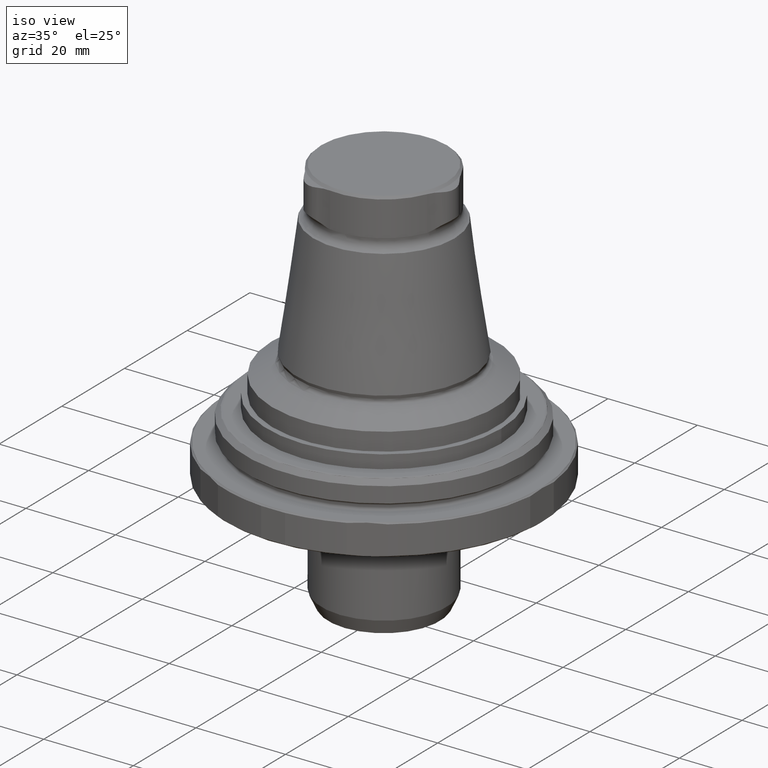
[diagram: clean part render]
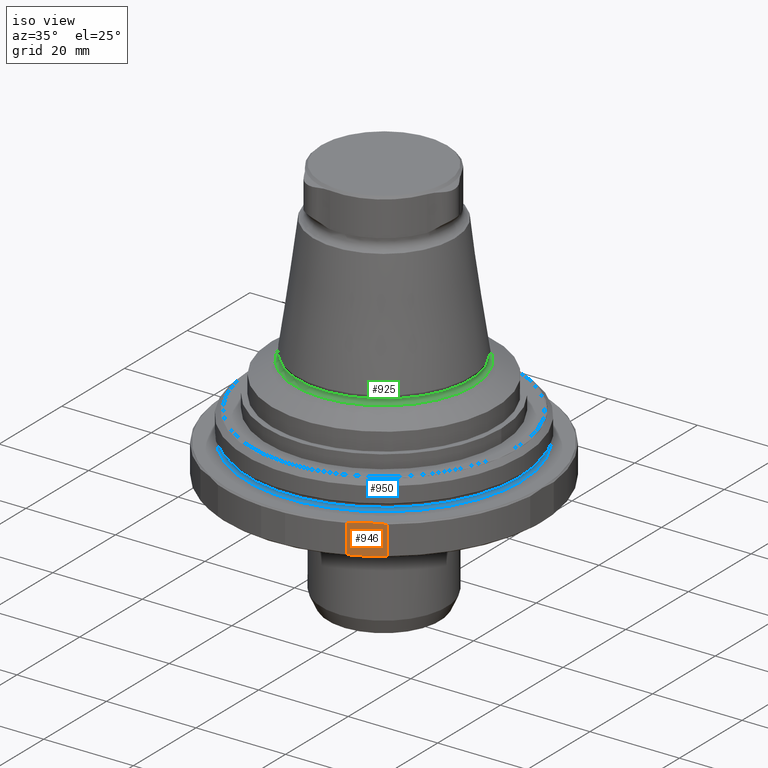
[diagram: same view with three faces highlighted in distinct colors, each labeled with its STEP entity id]
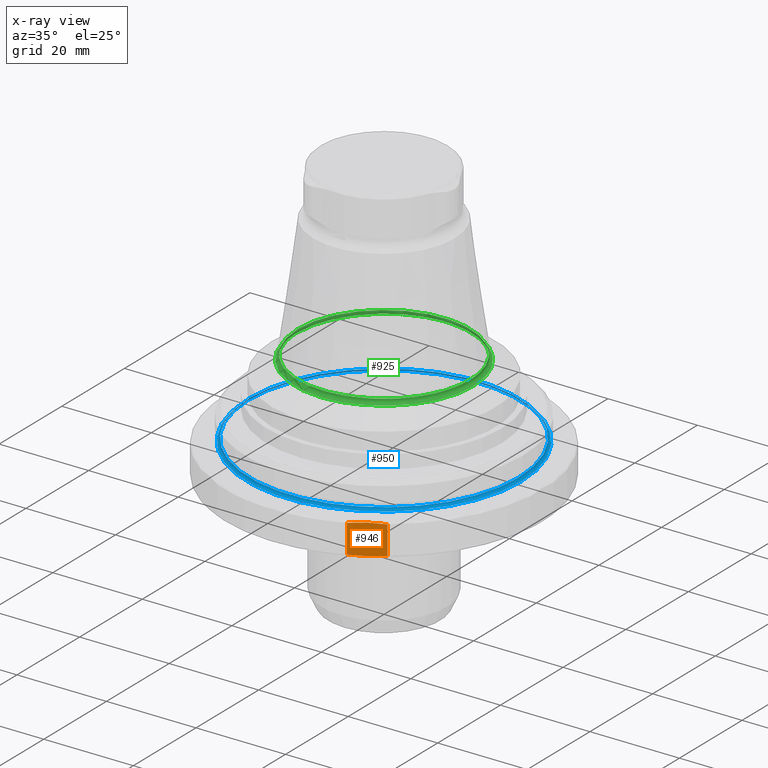
[diagram: x-ray of the same camera — body ghosted, the three highlighted faces saturated]
A machine part, iso view with three faces highlighted in distinct colors.
The next image is the same camera in x-ray (body ghosted, the three faces saturated) — at least one of them is partly hidden behind the body in this view.
Their STEP definitions:

[orange] entity #946 — the highlighted planar face has unit normal (-0.5, 0.866, 0).
#50=LINE('',#1779,#78);
#52=LINE('',#1783,#80);
#78=VECTOR('',#1306,1000.);
#80=VECTOR('',#1312,1000.);
#107=PLANE('',#1069);
#384=ORIENTED_EDGE('',*,*,#532,.F.);
#385=ORIENTED_EDGE('',*,*,#519,.F.);
#386=ORIENTED_EDGE('',*,*,#530,.F.);
#387=ORIENTED_EDGE('',*,*,#491,.F.);
#491=EDGE_CURVE('',#598,#599,#662,.T.);
#519=EDGE_CURVE('',#622,#623,#676,.T.);
#530=EDGE_CURVE('',#599,#622,#50,.T.);
#532=EDGE_CURVE('',#623,#598,#52,.F.);
#598=VERTEX_POINT('',#1657);
#599=VERTEX_POINT('',#1662);
#622=VERTEX_POINT('',#1753);
#623=VERTEX_POINT('',#1758);
#662=B_SPLINE_CURVE_WITH_KNOTS('',3,(#1658,#1659,#1660,#1661),
 .UNSPECIFIED.,.F.,.F.,(4,4),(0.00301971742095615,0.0105389064051034),
 .UNSPECIFIED.);
#676=B_SPLINE_CURVE_WITH_KNOTS('',3,(#1754,#1755,#1756,#1757),
 .UNSPECIFIED.,.F.,.F.,(4,4),(0.0142564267081391,0.0217467200872314),
 .UNSPECIFIED.);
#744=EDGE_LOOP('',(#384,#385,#386,#387));
#840=FACE_BOUND('',#744,.T.);
#946=ADVANCED_FACE('',(#840),#107,.F.);
#1069=AXIS2_PLACEMENT_3D('',#1784,#1313,#1314);
#1306=DIRECTION('',(-5.47430718319515E-16,-9.52839907700962E-18,-1.));
#1312=DIRECTION('',(-5.47430718319515E-16,-9.52839907700962E-18,-1.));
#1313=DIRECTION('',(-0.500000000000001,0.866025403784439,2.65463496549729E-16));
#1314=DIRECTION('',(-5.47430718319515E-16,-9.52839907700962E-18,-1.));
#1657=CARTESIAN_POINT('',(14.3911658526399,-32.4521855258135,-1.30000000000001));
#1658=CARTESIAN_POINT('',(14.3911658526399,-32.4521855258135,-1.30000000000004));
#1659=CARTESIAN_POINT('',(16.5539924560932,-31.2034770040992,-1.03527537313984));
#1660=CARTESIAN_POINT('',(18.7270089611763,-29.948885339936,-1.03294999360357));
#1661=CARTESIAN_POINT('',(20.90883414736,-28.6892079813681,-1.30000000000004));
#1662=CARTESIAN_POINT('',(20.90883414736,-28.6892079813681,-1.30000000000001));
#1753=CARTESIAN_POINT('',(20.90883414736,-28.6892079813681,-7.70000000000002));
#1754=CARTESIAN_POINT('',(20.90883414736,-28.6892079813681,-7.69999999999999));
#1755=CARTESIAN_POINT('',(18.7270089611763,-29.948885339936,-7.96705000639645));
#1756=CARTESIAN_POINT('',(16.5539924560932,-31.2034770040992,-7.96472462686018));
#1757=CARTESIAN_POINT('',(14.3911658526399,-32.4521855258135,-7.69999999999999));
#1758=CARTESIAN_POINT('',(14.3911658526399,-32.4521855258135,-7.70000000000001));
#1779=CARTESIAN_POINT('',(20.90883414736,-28.6892079813681,-1.00000000000001));
#1783=CARTESIAN_POINT('',(14.3911658526399,-32.4521855258135,-1.00000000000001));
#1784=CARTESIAN_POINT('',(17.65,-30.5706967535908,-4.50000000000001));

[blue] entity #950 — the highlighted toroidal blend (fillet) surface has major radius 30.65 mm and minor (blend) radius 0.6 mm.
#22=TOROIDAL_SURFACE('',#1075,30.65,0.6);
#158=CIRCLE('',#1072,30.65);
#160=CIRCLE('',#1076,30.05);
#396=ORIENTED_EDGE('',*,*,#533,.F.);
#397=ORIENTED_EDGE('',*,*,#535,.T.);
#533=EDGE_CURVE('',#624,#624,#158,.T.);
#535=EDGE_CURVE('',#626,#626,#160,.T.);
#624=VERTEX_POINT('',#1788);
#626=VERTEX_POINT('',#1794);
#750=EDGE_LOOP('',(#396));
#751=EDGE_LOOP('',(#397));
#846=FACE_BOUND('',#750,.T.);
#847=FACE_BOUND('',#751,.T.);
#950=ADVANCED_FACE('',(#846,#847),#22,.F.);
#1072=AXIS2_PLACEMENT_3D('',#1787,#1319,#1320);
#1075=AXIS2_PLACEMENT_3D('',#1792,#1325,#1326);
#1076=AXIS2_PLACEMENT_3D('',#1793,#1327,#1328);
#1319=DIRECTION('',(-5.47430718319515E-16,-9.52839907700963E-18,-1.));
#1320=DIRECTION('',(-1.,8.32667268468868E-16,5.47430716006892E-16));
#1325=DIRECTION('',(-5.47430718319515E-16,-9.52839907700963E-18,-1.));
#1326=DIRECTION('',(-1.,8.32667268468868E-16,5.47430716006892E-16));
#1327=DIRECTION('',(-5.47430718319515E-16,-9.52839907700963E-18,-1.));
#1328=DIRECTION('',(-1.,8.32667268468868E-16,5.47430716006892E-16));
#1787=CARTESIAN_POINT('',(-8.89108831172721E-14,-9.82264697048288E-14,-1.));
#1788=CARTESIAN_POINT('',(-30.6500000000001,-7.2705217926258E-14,-0.999999999999986));
#1792=CARTESIAN_POINT('',(-8.85824246862804E-14,-9.82207526653826E-14,-0.400000000000003));
#1793=CARTESIAN_POINT('',(-8.85824246862804E-14,-9.82207526653826E-14,-0.400000000000003));
#1794=CARTESIAN_POINT('',(-30.0500000000001,-7.31991012478931E-14,-0.399999999999987));

[green] entity #925 — the highlighted toroidal blend (fillet) surface has major radius 20 mm and minor (blend) radius 0.8 mm.
#21=TOROIDAL_SURFACE('',#1026,20.,0.8);
#135=CIRCLE('',#1025,19.2482459033713);
#136=CIRCLE('',#1027,19.9770526580503);
#284=ORIENTED_EDGE('',*,*,#478,.T.);
#285=ORIENTED_EDGE('',*,*,#479,.F.);
#478=EDGE_CURVE('',#585,#585,#135,.T.);
#479=EDGE_CURVE('',#586,#586,#136,.T.);
#585=VERTEX_POINT('',#1622);
#586=VERTEX_POINT('',#1625);
#716=EDGE_LOOP('',(#284));
#717=EDGE_LOOP('',(#285));
#812=FACE_BOUND('',#716,.T.);
#813=FACE_BOUND('',#717,.T.);
#925=ADVANCED_FACE('',(#812,#813),#21,.F.);
#1025=AXIS2_PLACEMENT_3D('',#1621,#1209,#1210);
#1026=AXIS2_PLACEMENT_3D('',#1623,#1211,#1212);
#1027=AXIS2_PLACEMENT_3D('',#1624,#1213,#1214);
#1209=DIRECTION('',(-4.38328612912168E-16,-8.51929322185263E-24,-1.));
#1210=DIRECTION('',(-1.,9.77164313006873E-16,4.38328610599545E-16));
#1211=DIRECTION('',(-4.38328612912168E-16,-8.51929322185263E-24,-1.));
#1212=DIRECTION('',(-1.,9.77164313006873E-16,4.38328610599545E-16));
#1213=DIRECTION('',(-4.38328612912168E-16,-8.51929322185263E-24,-1.));
#1214=DIRECTION('',(-1.,9.77164313006873E-16,4.38328610599545E-16));
#1621=CARTESIAN_POINT('',(-8.05431646594814E-14,-9.81645350279988E-14,16.4721762342285));
#1622=CARTESIAN_POINT('',(-19.2482459033714,-7.93558360432436E-14,16.4721762342285));
#1623=CARTESIAN_POINT('',(-8.14268490836323E-14,-9.81645350303298E-14,16.198560119568));
#1624=CARTESIAN_POINT('',(-8.10136170325717E-14,-9.81645350371424E-14,15.398889300107));
#1625=CARTESIAN_POINT('',(-19.9770526580504,-7.86436721006366E-14,15.398889300107));